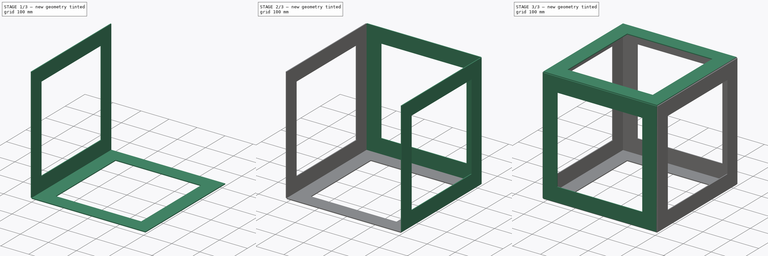
[diagram: build sequence overview — one tinted view per stage of 3, left to right]
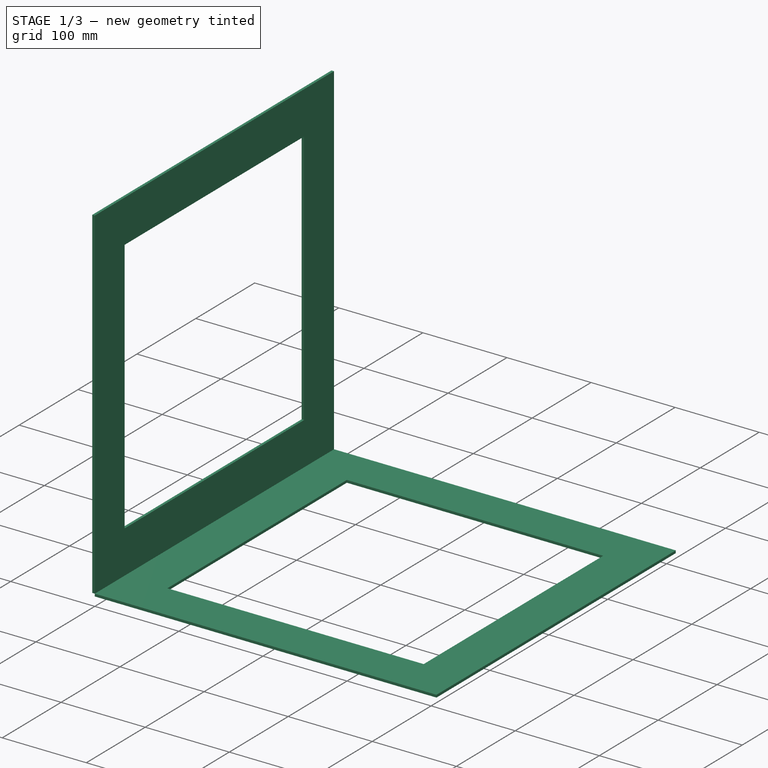
[diagram: stage 1 of 3 — iso view after this stage's code; geometry added in this stage tinted green]
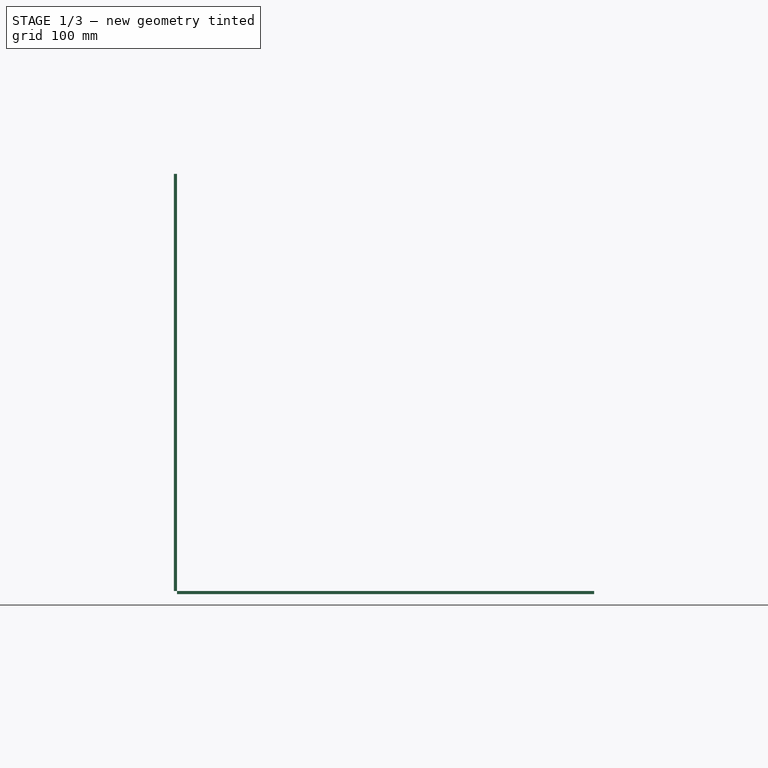
[diagram: stage 1 of 3 — front view after this stage's code; geometry added in this stage tinted green]
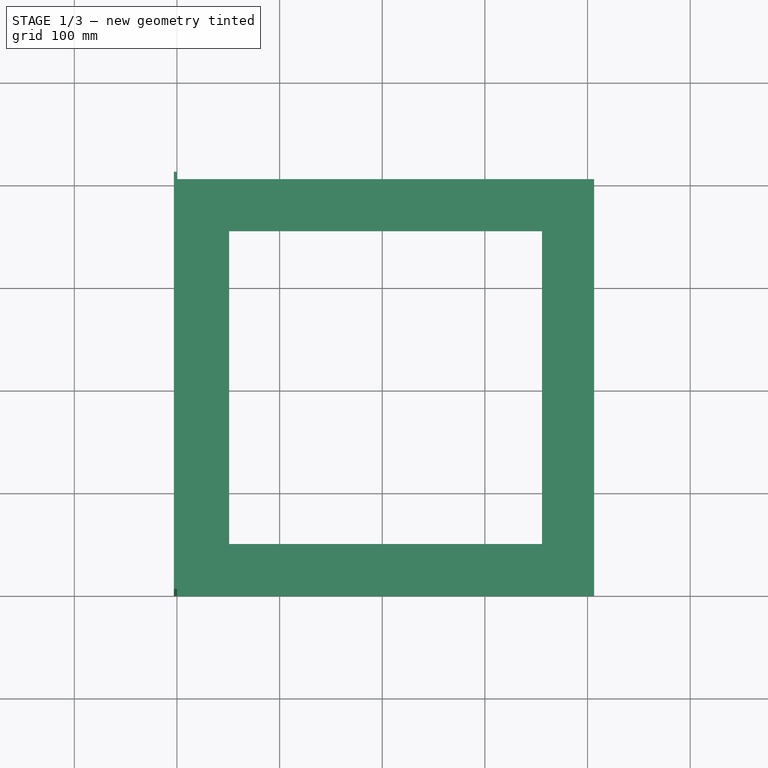
[diagram: stage 1 of 3 — top view after this stage's code; geometry added in this stage tinted green]
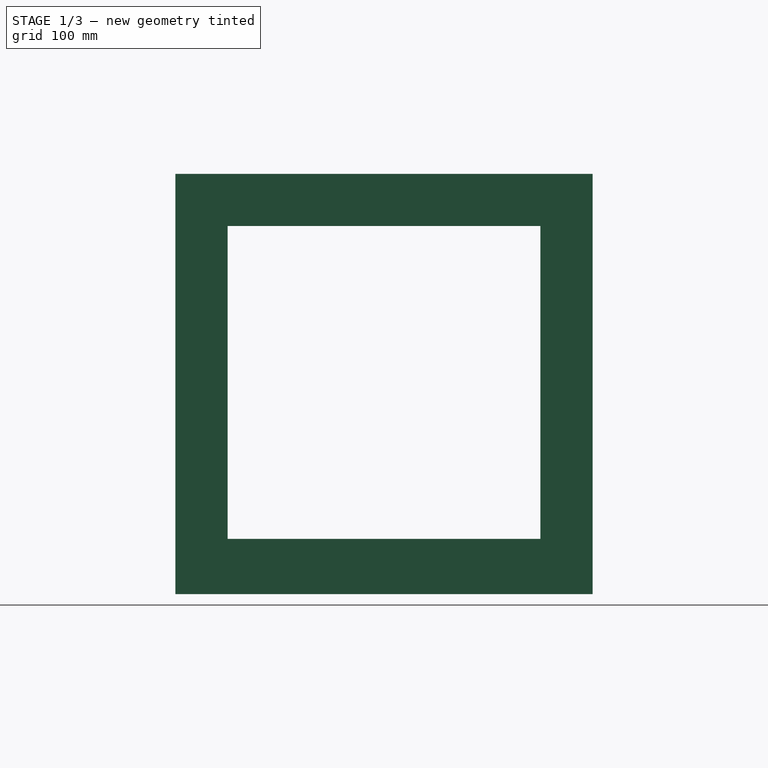
[diagram: stage 1 of 3 — right view after this stage's code; geometry added in this stage tinted green]
FCSTD DOCUMENT  (FreeCAD 0.16R6705 (Git))
Label: D3D_frame_assembled_16inch
License: All rights reserved
LicenseURL: http://en.wikipedia.org/wiki/All_rights_reserved
objects: Sketcher::SketchObject×6, PartDesign::Pad×6
note: 18 computed .brp shape members not serialized (recipe doc carries the construction recipe); baked Part::Feature solids carry a one-line shape summary decoded from their .brp

FEATURE [PartDesign::Pad] Pad004
  Length = 3
  Length2 = 100
  Placement = pos=(0,0,0) rot=(0.57735,0.57735,0.57735;2.0944rad)
  Reversed = true
  Sketch = -> Sketch004
  Type = 0
FEATURE [PartDesign::Pad] Pad005
  Length = 3
  Length2 = 100
  Placement = pos=(0,0,0) rot=(0.707107,0.707107,0;3.14159rad)
  Sketch = -> Sketch003
  Type = 0
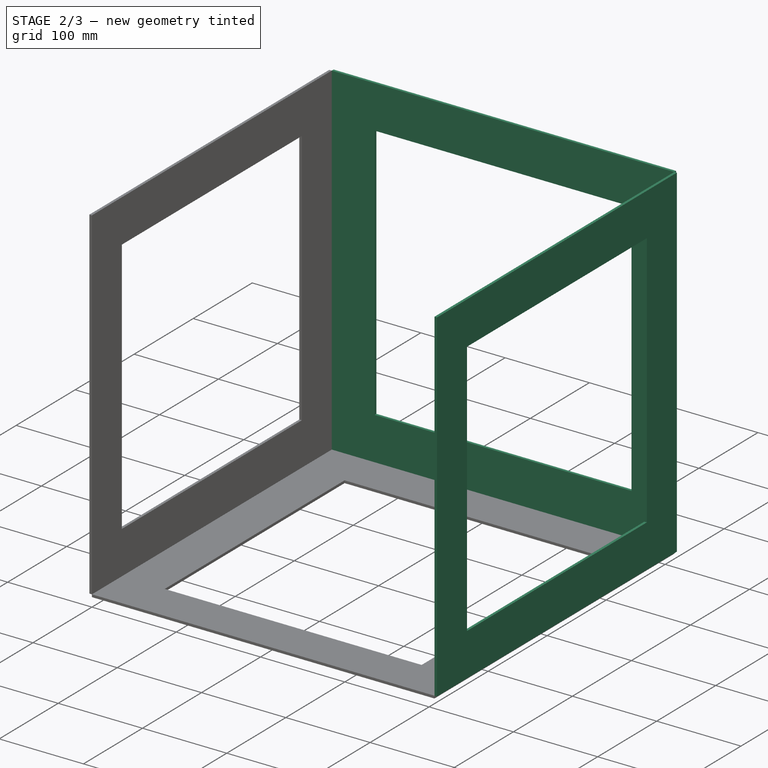
[diagram: stage 2 of 3 — iso view after this stage's code; geometry added in this stage tinted green]
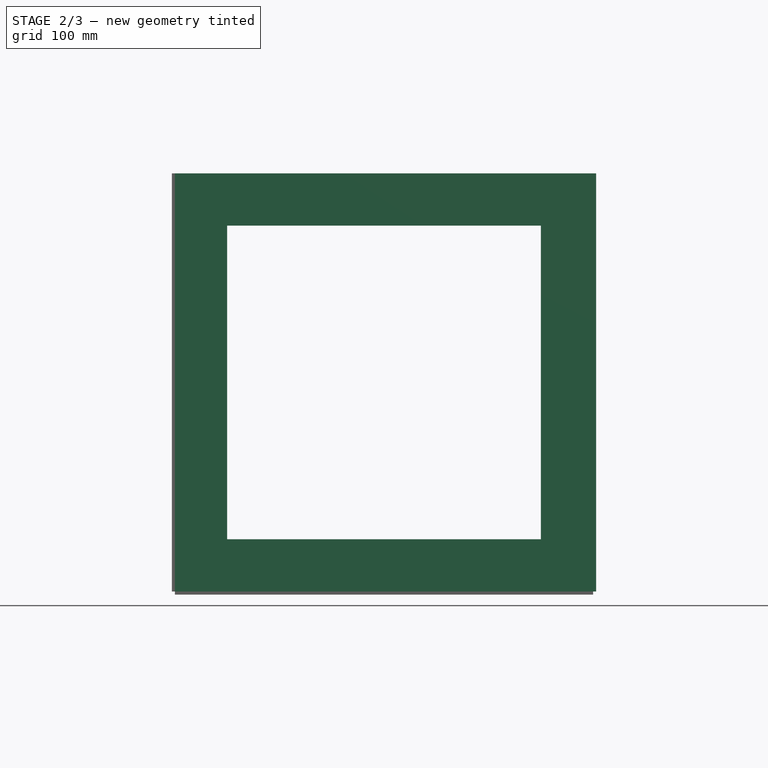
[diagram: stage 2 of 3 — front view after this stage's code; geometry added in this stage tinted green]
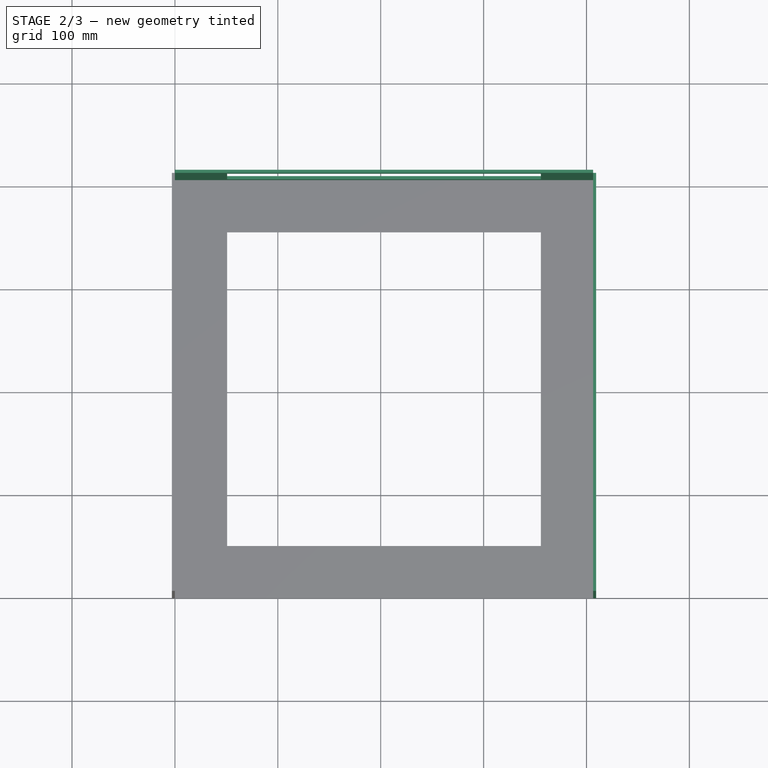
[diagram: stage 2 of 3 — top view after this stage's code; geometry added in this stage tinted green]
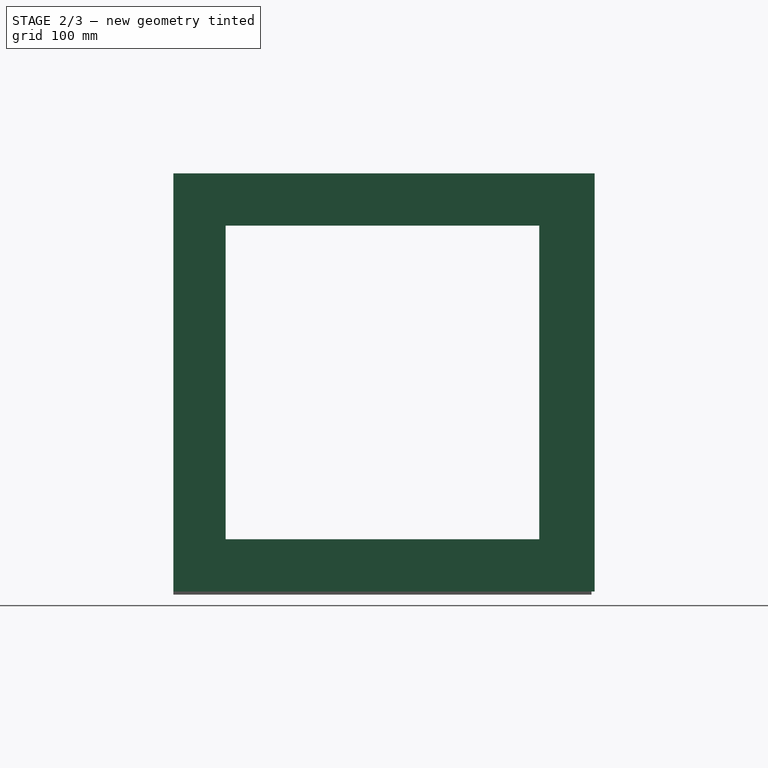
[diagram: stage 2 of 3 — right view after this stage's code; geometry added in this stage tinted green]
FEATURE [PartDesign::Pad] Pad002
  Length = 3
  Length2 = 100
  Placement = pos=(406.4,4.84467e-05,6e-12) rot=(0.57735,0.57735,0.57735;2.0944rad)
  Sketch = -> Sketch002
  Type = 0
FEATURE [PartDesign::Pad] Pad003
  Length = 3
  Length2 = 100
  Placement = pos=(0,406.4,6e-12) rot=(1,0,0;1.5708rad)
  Reversed = true
  Sketch = -> Sketch
  Type = 0
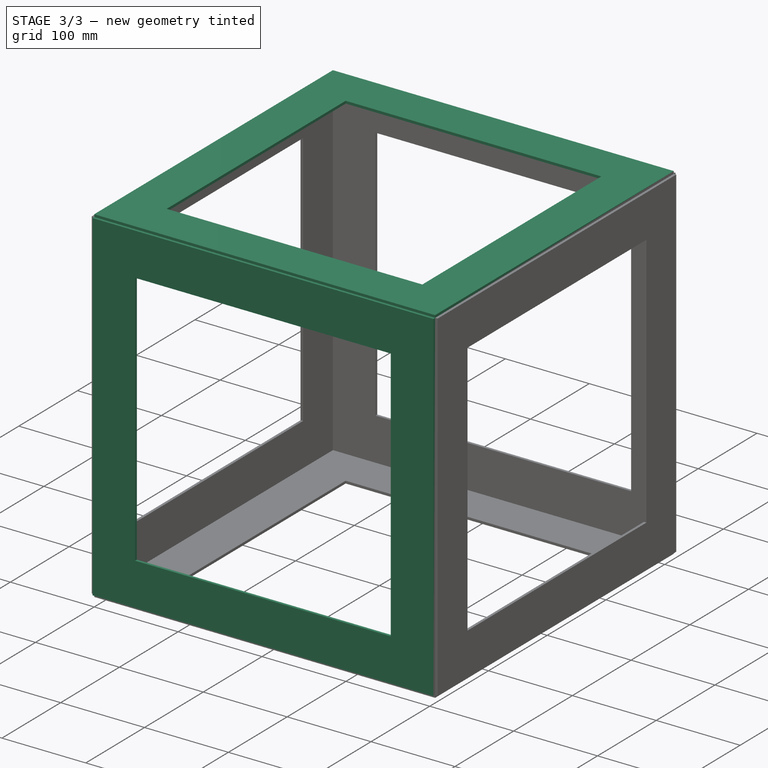
[diagram: stage 3 of 3 — iso view after this stage's code; geometry added in this stage tinted green]
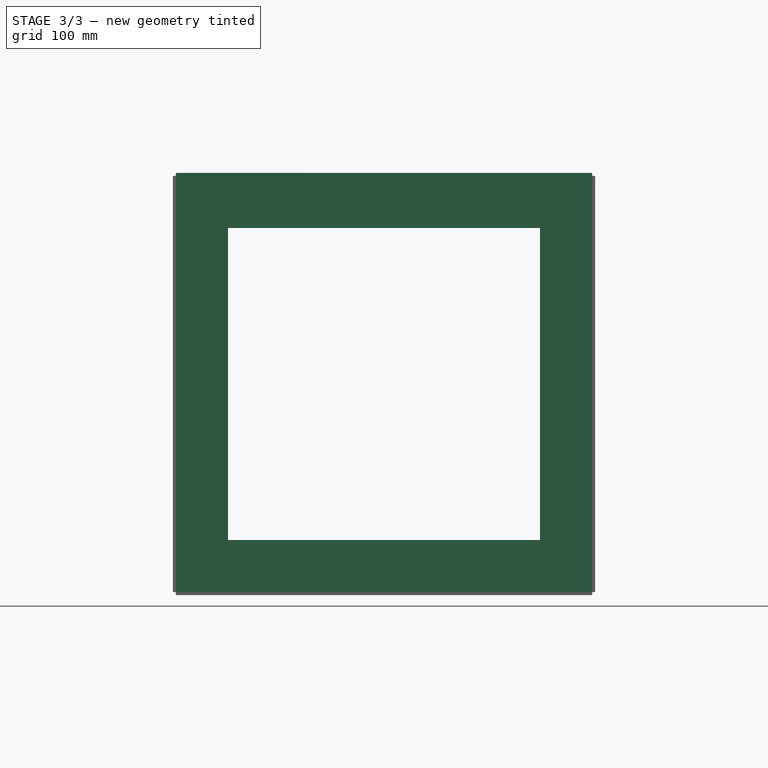
[diagram: stage 3 of 3 — front view after this stage's code; geometry added in this stage tinted green]
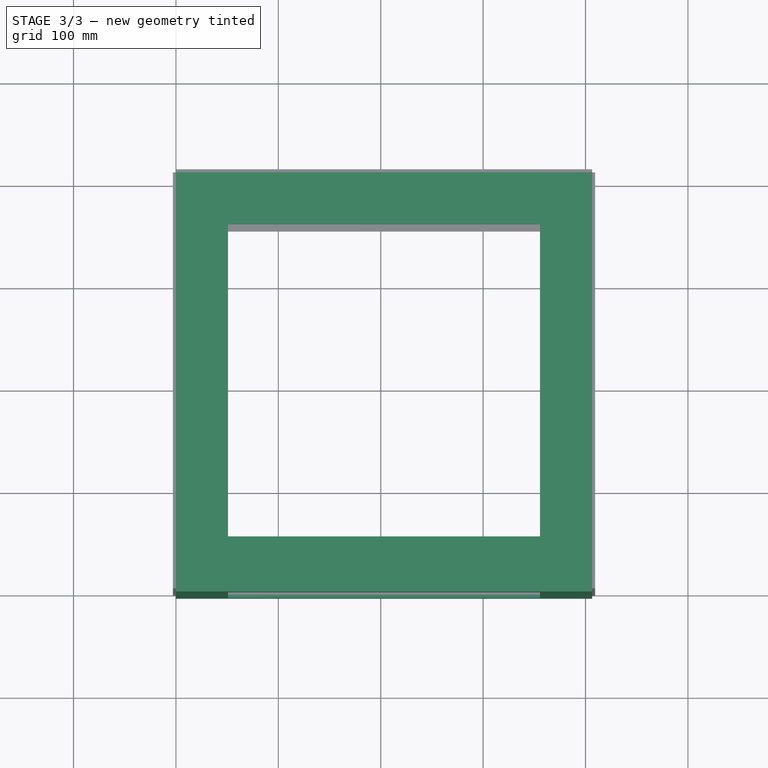
[diagram: stage 3 of 3 — top view after this stage's code; geometry added in this stage tinted green]
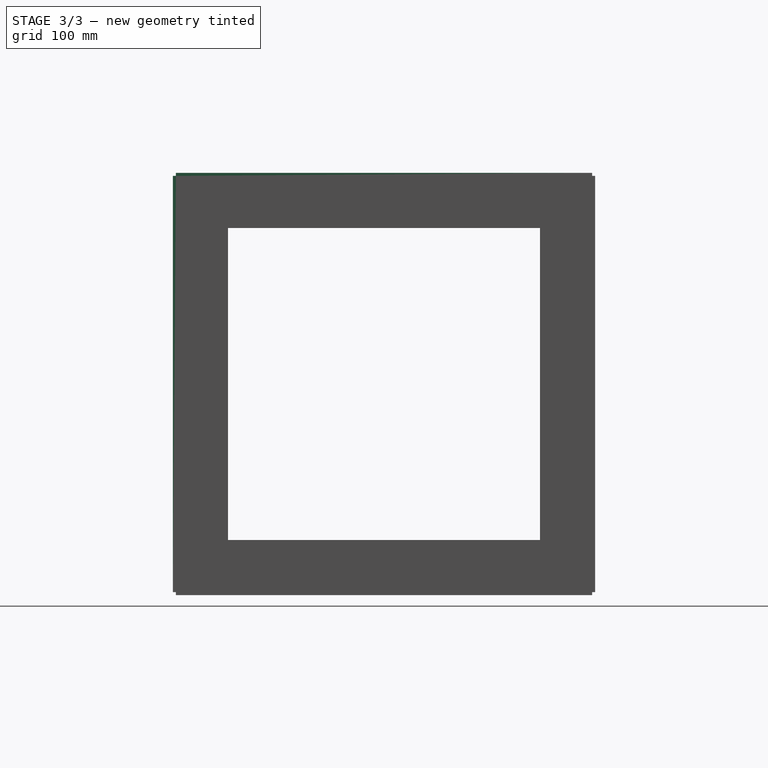
[diagram: stage 3 of 3 — right view after this stage's code; geometry added in this stage tinted green]
FEATURE [Sketcher::SketchObject] Sketch
  Placement = pos=(0,406.4,6e-12) rot=(1,0,0;1.5708rad)
  sketch-geometry (8):
    g0: LineSegment StartX=0 StartY=406.4 StartZ=0 EndX=406.4 EndY=406.4 EndZ=0
    g1: LineSegment StartX=406.4 StartY=406.4 StartZ=0 EndX=406.4 EndY=0 EndZ=0
    g2: LineSegment StartX=406.4 StartY=0 StartZ=0 EndX=0 EndY=0 EndZ=0
    g3: LineSegment StartX=0 StartY=0 StartZ=0 EndX=0 EndY=406.4 EndZ=0
    g4: LineSegment StartX=50.8 StartY=355.6 StartZ=0 EndX=355.6 EndY=355.6 EndZ=0
    g5: LineSegment StartX=355.6 StartY=355.6 StartZ=0 EndX=355.6 EndY=50.8 EndZ=0
    g6: LineSegment StartX=355.6 StartY=50.8 StartZ=0 EndX=50.8 EndY=50.8 EndZ=0
    g7: LineSegment StartX=50.8 StartY=50.8 StartZ=0 EndX=50.8 EndY=355.6 EndZ=0
  constraints (23):
    c: Coincident(g0,g1)
    c: Coincident(g1,g2)
    c: Coincident(g2,g3)
    c: Coincident(g3,g0)
    c: Horizontal(g0)
    c: Horizontal(g2)
    c: Vertical(g1)
    c: Vertical(g3)
    c: Equal(g0,g3)
    c: DistanceX(g0,g0) = 406.4
    c: Coincident(g4,g5)
    c: Coincident(g5,g6)
    c: Coincident(g6,g7)
    c: Coincident(g7,g4)
    c: Horizontal(g4)
    c: Horizontal(g6)
    c: Vertical(g5)
    c: Vertical(g7)
    c: DistanceX(g0,g4) = 50.8
    c: Equal(g4,g7)
    c: Coincident(g2,g-1)
    c: DistanceY(g4,g0) = 50.8
    c: DistanceX(g4,g4) = 304.8
FEATURE [Sketcher::SketchObject] Sketch001
  Placement = pos=(0,0,406.4) rot=(0.707107,0.707107,0;3.14159rad)
  sketch-geometry (8):
    g0: LineSegment StartX=0 StartY=406.4 StartZ=0 EndX=406.4 EndY=406.4 EndZ=0
    g1: LineSegment StartX=406.4 StartY=406.4 StartZ=0 EndX=406.4 EndY=0 EndZ=0
    g2: LineSegment StartX=406.4 StartY=0 StartZ=0 EndX=0 EndY=0 EndZ=0
    g3: LineSegment StartX=0 StartY=0 StartZ=0 EndX=0 EndY=406.4 EndZ=0
    g4: LineSegment StartX=50.8 StartY=355.6 StartZ=0 EndX=355.6 EndY=355.6 EndZ=0
    g5: LineSegment StartX=355.6 StartY=355.6 StartZ=0 EndX=355.6 EndY=50.8 EndZ=0
    g6: LineSegment StartX=355.6 StartY=50.8 StartZ=0 EndX=50.8 EndY=50.8 EndZ=0
    g7: LineSegment StartX=50.8 StartY=50.8 StartZ=0 EndX=50.8 EndY=355.6 EndZ=0
  constraints (23):
    c: Coincident(g0,g1)
    c: Coincident(g1,g2)
    c: Coincident(g2,g3)
    c: Coincident(g3,g0)
    c: Horizontal(g0)
    c: Horizontal(g2)
    c: Vertical(g1)
    c: Vertical(g3)
    c: Equal(g0,g3)
    c: DistanceX(g0,g0) = 406.4
    c: Coincident(g4,g5)
    c: Coincident(g5,g6)
    c: Coincident(g6,g7)
    c: Coincident(g7,g4)
    c: Horizontal(g4)
    c: Horizontal(g6)
    c: Vertical(g5)
    c: Vertical(g7)
    c: DistanceX(g0,g4) = 50.8
    c: Equal(g4,g7)
    c: Coincident(g2,g-1)
    c: DistanceY(g4,g0) = 50.8
    c: DistanceX(g4,g4) = 304.8
FEATURE [Sketcher::SketchObject] Sketch002
  Placement = pos=(406.4,4.84467e-05,6e-12) rot=(0.57735,0.57735,0.57735;2.0944rad)
  sketch-geometry (8):
    g0: LineSegment StartX=0 StartY=406.4 StartZ=0 EndX=406.4 EndY=406.4 EndZ=0
    g1: LineSegment StartX=406.4 StartY=406.4 StartZ=0 EndX=406.4 EndY=0 EndZ=0
    g2: LineSegment StartX=406.4 StartY=0 StartZ=0 EndX=0 EndY=0 EndZ=0
    g3: LineSegment StartX=0 StartY=0 StartZ=0 EndX=0 EndY=406.4 EndZ=0
    g4: LineSegment StartX=50.8 StartY=355.6 StartZ=0 EndX=355.6 EndY=355.6 EndZ=0
    g5: LineSegment StartX=355.6 StartY=355.6 StartZ=0 EndX=355.6 EndY=50.8 EndZ=0
    g6: LineSegment StartX=355.6 StartY=50.8 StartZ=0 EndX=50.8 EndY=50.8 EndZ=0
    g7: LineSegment StartX=50.8 StartY=50.8 StartZ=0 EndX=50.8 EndY=355.6 EndZ=0
  constraints (23):
    c: Coincident(g0,g1)
    c: Coincident(g1,g2)
    c: Coincident(g2,g3)
    c: Coincident(g3,g0)
    c: Horizontal(g0)
    c: Horizontal(g2)
    c: Vertical(g1)
    c: Vertical(g3)
    c: Equal(g0,g3)
    c: DistanceX(g0,g0) = 406.4
    c: Coincident(g4,g5)
    c: Coincident(g5,g6)
    c: Coincident(g6,g7)
    c: Coincident(g7,g4)
    c: Horizontal(g4)
    c: Horizontal(g6)
    c: Vertical(g5)
    c: Vertical(g7)
    c: DistanceX(g0,g4) = 50.8
    c: Equal(g4,g7)
    c: Coincident(g2,g-1)
    c: DistanceY(g4,g0) = 50.8
    c: DistanceX(g4,g4) = 304.8
FEATURE [Sketcher::SketchObject] Sketch003
  Placement = pos=(0,0,0) rot=(0.707107,0.707107,0;3.14159rad)
  sketch-geometry (8):
    g0: LineSegment StartX=0 StartY=406.4 StartZ=0 EndX=406.4 EndY=406.4 EndZ=0
    g1: LineSegment StartX=406.4 StartY=406.4 StartZ=0 EndX=406.4 EndY=0 EndZ=0
    g2: LineSegment StartX=406.4 StartY=0 StartZ=0 EndX=0 EndY=0 EndZ=0
    g3: LineSegment StartX=0 StartY=0 StartZ=0 EndX=0 EndY=406.4 EndZ=0
    g4: LineSegment StartX=50.8 StartY=355.6 StartZ=0 EndX=355.6 EndY=355.6 EndZ=0
    g5: LineSegment StartX=355.6 StartY=355.6 StartZ=0 EndX=355.6 EndY=50.8 EndZ=0
    g6: LineSegment StartX=355.6 StartY=50.8 StartZ=0 EndX=50.8 EndY=50.8 EndZ=0
    g7: LineSegment StartX=50.8 StartY=50.8 StartZ=0 EndX=50.8 EndY=355.6 EndZ=0
  constraints (23):
    c: Coincident(g0,g1)
    c: Coincident(g1,g2)
    c: Coincident(g2,g3)
    c: Coincident(g3,g0)
    c: Horizontal(g0)
    c: Horizontal(g2)
    c: Vertical(g1)
    c: Vertical(g3)
    c: Equal(g0,g3)
    c: DistanceX(g0,g0) = 406.4
    c: Coincident(g4,g5)
    c: Coincident(g5,g6)
    c: Coincident(g6,g7)
    c: Coincident(g7,g4)
    c: Horizontal(g4)
    c: Horizontal(g6)
    c: Vertical(g5)
    c: Vertical(g7)
    c: DistanceX(g0,g4) = 50.8
    c: Equal(g4,g7)
    c: Coincident(g2,g-1)
    c: DistanceY(g4,g0) = 50.8
    c: DistanceX(g4,g4) = 304.8
FEATURE [Sketcher::SketchObject] Sketch004
  Placement = pos=(0,0,0) rot=(0.57735,0.57735,0.57735;2.0944rad)
  sketch-geometry (8):
    g0: LineSegment StartX=0 StartY=406.4 StartZ=0 EndX=406.4 EndY=406.4 EndZ=0
    g1: LineSegment StartX=406.4 StartY=406.4 StartZ=0 EndX=406.4 EndY=0 EndZ=0
    g2: LineSegment StartX=406.4 StartY=0 StartZ=0 EndX=0 EndY=0 EndZ=0
    g3: LineSegment StartX=0 StartY=0 StartZ=0 EndX=0 EndY=406.4 EndZ=0
    g4: LineSegment StartX=50.8 StartY=355.6 StartZ=0 EndX=355.6 EndY=355.6 EndZ=0
    g5: LineSegment StartX=355.6 StartY=355.6 StartZ=0 EndX=355.6 EndY=50.8 EndZ=0
    g6: LineSegment StartX=355.6 StartY=50.8 StartZ=0 EndX=50.8 EndY=50.8 EndZ=0
    g7: LineSegment StartX=50.8 StartY=50.8 StartZ=0 EndX=50.8 EndY=355.6 EndZ=0
  constraints (23):
    c: Coincident(g0,g1)
    c: Coincident(g1,g2)
    c: Coincident(g2,g3)
    c: Coincident(g3,g0)
    c: Horizontal(g0)
    c: Horizontal(g2)
    c: Vertical(g1)
    c: Vertical(g3)
    c: Equal(g0,g3)
    c: DistanceX(g0,g0) = 406.4
    c: Coincident(g4,g5)
    c: Coincident(g5,g6)
    c: Coincident(g6,g7)
    c: Coincident(g7,g4)
    c: Horizontal(g4)
    c: Horizontal(g6)
    c: Vertical(g5)
    c: Vertical(g7)
    c: DistanceX(g0,g4) = 50.8
    c: Equal(g4,g7)
    c: Coincident(g2,g-1)
    c: DistanceY(g4,g0) = 50.8
    c: DistanceX(g4,g4) = 304.8
FEATURE [Sketcher::SketchObject] Sketch005
  Placement = pos=(0,0,0) rot=(1,0,0;1.5708rad)
  sketch-geometry (8):
    g0: LineSegment StartX=0 StartY=406.4 StartZ=0 EndX=406.4 EndY=406.4 EndZ=0
    g1: LineSegment StartX=406.4 StartY=406.4 StartZ=0 EndX=406.4 EndY=0 EndZ=0
    g2: LineSegment StartX=406.4 StartY=0 StartZ=0 EndX=0 EndY=0 EndZ=0
    g3: LineSegment StartX=0 StartY=0 StartZ=0 EndX=0 EndY=406.4 EndZ=0
    g4: LineSegment StartX=50.8 StartY=355.6 StartZ=0 EndX=355.6 EndY=355.6 EndZ=0
    g5: LineSegment StartX=355.6 StartY=355.6 StartZ=0 EndX=355.6 EndY=50.8 EndZ=0
    g6: LineSegment StartX=355.6 StartY=50.8 StartZ=0 EndX=50.8 EndY=50.8 EndZ=0
    g7: LineSegment StartX=50.8 StartY=50.8 StartZ=0 EndX=50.8 EndY=355.6 EndZ=0
  constraints (23):
    c: Coincident(g0,g1)
    c: Coincident(g1,g2)
    c: Coincident(g2,g3)
    c: Coincident(g3,g0)
    c: Horizontal(g0)
    c: Horizontal(g2)
    c: Vertical(g1)
    c: Vertical(g3)
    c: Equal(g0,g3)
    c: DistanceX(g0,g0) = 406.4
    c: Coincident(g4,g5)
    c: Coincident(g5,g6)
    c: Coincident(g6,g7)
    c: Coincident(g7,g4)
    c: Horizontal(g4)
    c: Horizontal(g6)
    c: Vertical(g5)
    c: Vertical(g7)
    c: DistanceX(g0,g4) = 50.8
    c: Equal(g4,g7)
    c: Coincident(g2,g-1)
    c: DistanceY(g4,g0) = 50.8
    c: DistanceX(g4,g4) = 304.8
FEATURE [PartDesign::Pad] Pad
  Length = 3
  Length2 = 100
  Placement = pos=(0,0,406.4) rot=(0.707107,0.707107,0;3.14159rad)
  Reversed = true
  Sketch = -> Sketch001
  Type = 0
FEATURE [PartDesign::Pad] Pad001
  Length = 3
  Length2 = 100
  Placement = pos=(0,0,0) rot=(1,0,0;1.5708rad)
  Sketch = -> Sketch005
  Type = 0
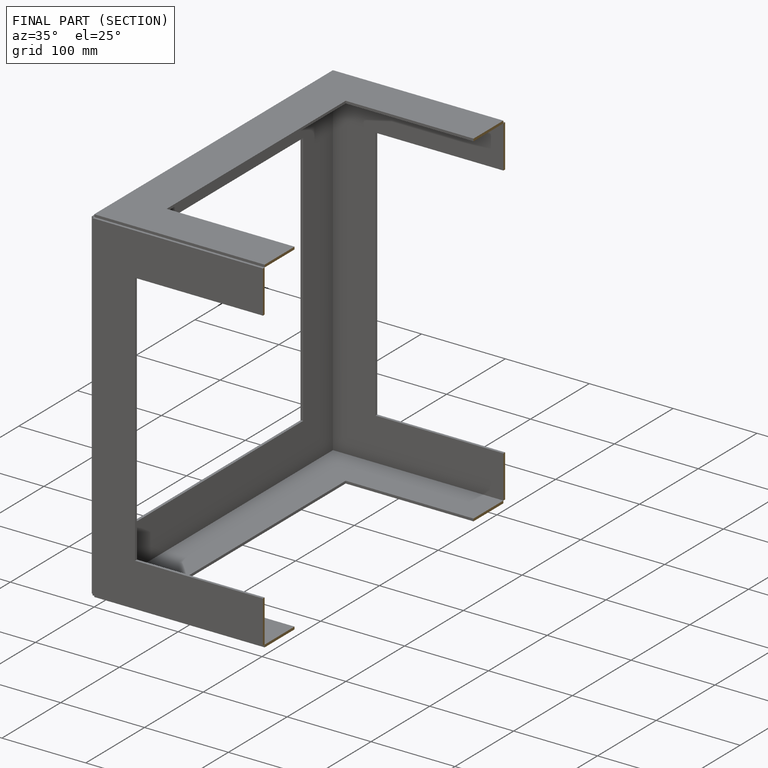
[diagram: finished part — half-section view (interior)]
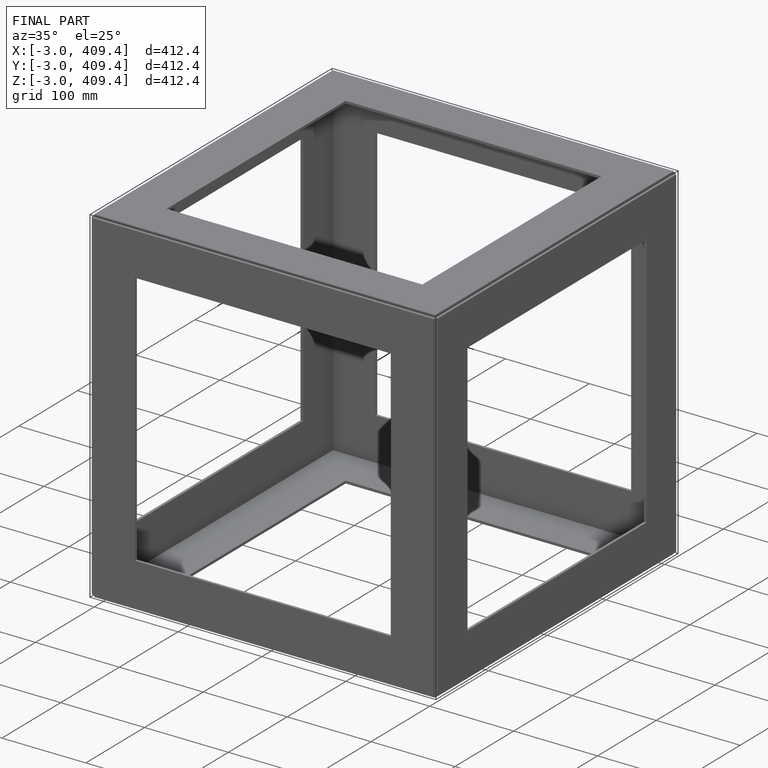
[diagram: finished part — iso view with bounding-box wireframe]
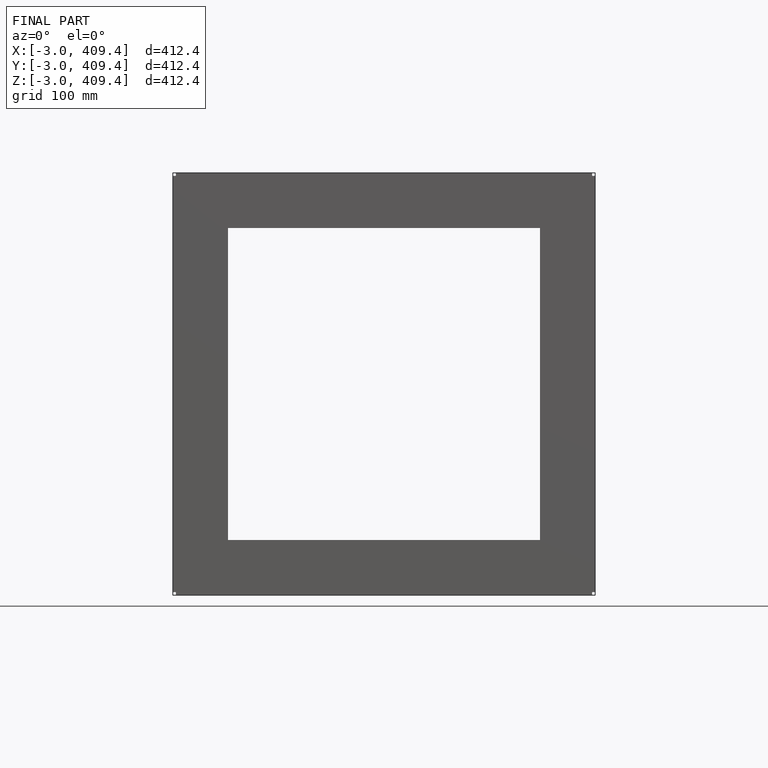
[diagram: finished part — front view with bounding-box wireframe]
